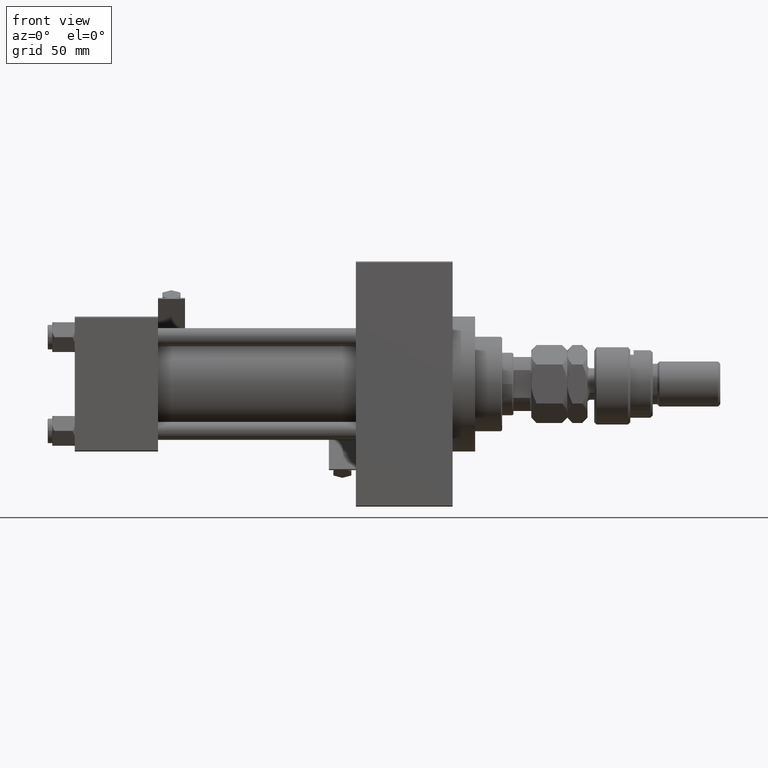
[diagram: clean part render]
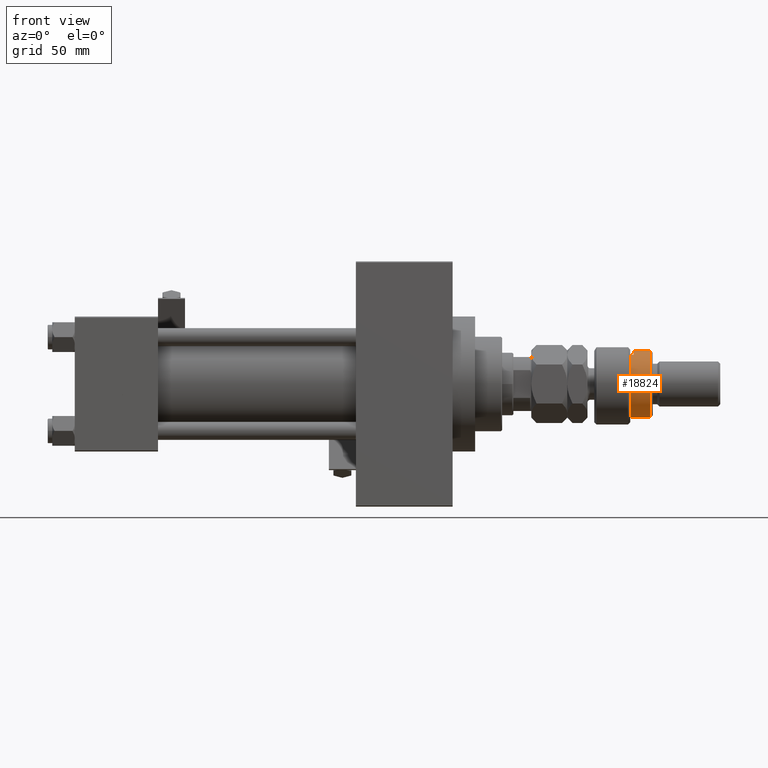
[diagram: same view with one face highlighted and labeled with its STEP entity id]
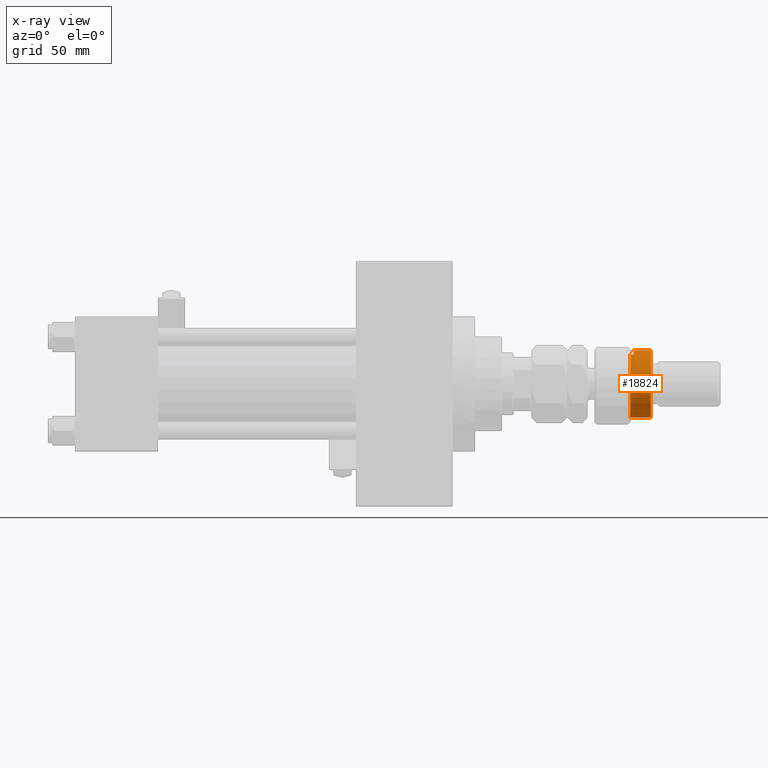
[diagram: x-ray of the same camera — body ghosted, the highlighted face saturated]
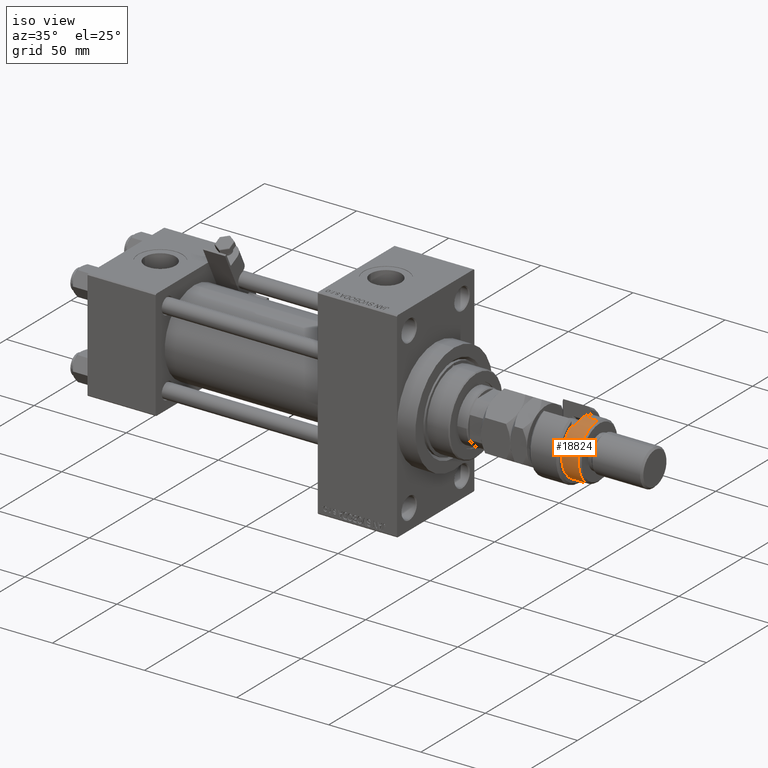
[diagram: same view with one face highlighted and labeled with its STEP entity id]
A machine part, front view. The second image highlights one B-rep face of the part: STEP entity #18824.
The next image is the same camera in x-ray: the body ghosted, the highlighted face saturated — about 0% of this face is hidden behind the body in this view.
A second angle (iso view) of the same face is appended — the face is thin or edge-on in the first view.
In plain terms, the highlighted cylindrical surface (edge-blend (fillet) strip) has radius 15 mm, axis along (-1, -0, 0).
Its self-contained STEP definition (entity closure, byte-faithful):
#448 = EDGE_CURVE ( 'NONE', #2203, #9886, #21284, .T. ) ;
#2203 = VERTEX_POINT ( 'NONE', #14972 ) ;
#4468 = CIRCLE ( 'NONE', #16581, 15.00000000000000000 ) ;
#4891 = FACE_OUTER_BOUND ( 'NONE', #12240, .T. ) ;
#5483 = LINE ( 'NONE', #30122, #36475 ) ;
#5739 = ORIENTED_EDGE ( 'NONE', *, *, #26897, .T. ) ;
#7665 = CARTESIAN_POINT ( 'NONE',  ( 0.000000000000000000, 0.000000000000000000, 24.99999999999997868 ) ) ;
#9214 = CYLINDRICAL_SURFACE ( 'NONE', #40117, 15.00000000000000000 ) ;
#9538 = CARTESIAN_POINT ( 'NONE',  ( 0.000000000000000000, 0.000000000000000000, 17.50000000000000000 ) ) ;
#9886 = VERTEX_POINT ( 'NONE', #48741 ) ;
#11655 = VERTEX_POINT ( 'NONE', #34429 ) ;
#11727 = DIRECTION ( 'NONE',  ( 0.000000000000000000, 0.000000000000000000, -1.000000000000000000 ) ) ;
#12240 = EDGE_LOOP ( 'NONE', ( #44793, #46743, #29122, #37477, #5739, #48478 ) ) ;
#12761 = DIRECTION ( 'NONE',  ( -0.000000000000000000, -0.000000000000000000, -1.000000000000000000 ) ) ;
#12969 = EDGE_CURVE ( 'NONE', #52557, #11655, #29182, .T. ) ;
#14459 = AXIS2_PLACEMENT_3D ( 'NONE', #7665, #11727, #40679 ) ;
#14972 = CARTESIAN_POINT ( 'NONE',  ( -12.99038105676658006, -7.500000000000000000, 16.00000000000000000 ) ) ;
#16581 = AXIS2_PLACEMENT_3D ( 'NONE', #9538, #30634, #50901 ) ;
#18820 = CARTESIAN_POINT ( 'NONE',  ( -12.99038105676658006, -7.500000000000000000, 26.00000000000000355 ) ) ;
#18824 = ADVANCED_FACE ( 'NONE', ( #4891 ), #9214, .T. ) ;
#21284 = CIRCLE ( 'NONE', #38559, 15.00000000000000000 ) ;
#22414 = VERTEX_POINT ( 'NONE', #28302 ) ;
#24909 = VECTOR ( 'NONE', #51520, 1000.000000000000000 ) ;
#25214 = DIRECTION ( 'NONE',  ( -1.000000000000000000, 0.000000000000000000, 0.000000000000000000 ) ) ;
#26897 = EDGE_CURVE ( 'NONE', #22414, #2203, #35589, .T. ) ;
#27434 = CIRCLE ( 'NONE', #14459, 15.00000000000000000 ) ;
#28302 = CARTESIAN_POINT ( 'NONE',  ( -12.99038105676658006, -7.500000000000000000, 17.50000000000000000 ) ) ;
#29122 = ORIENTED_EDGE ( 'NONE', *, *, #12969, .T. ) ;
#29182 = LINE ( 'NONE', #32689, #36356 ) ;
#30122 = CARTESIAN_POINT ( 'NONE',  ( 15.00000000000000000, 1.836970198721029589E-15, 26.00000000000000355 ) ) ;
#30634 = DIRECTION ( 'NONE',  ( 0.000000000000000000, 0.000000000000000000, -1.000000000000000000 ) ) ;
#32524 = CARTESIAN_POINT ( 'NONE',  ( 0.000000000000000000, 0.000000000000000000, 16.00000000000000000 ) ) ;
#32689 = CARTESIAN_POINT ( 'NONE',  ( -15.00000000000000000, 0.000000000000000000, 26.00000000000000355 ) ) ;
#33290 = VERTEX_POINT ( 'NONE', #42910 ) ;
#34429 = CARTESIAN_POINT ( 'NONE',  ( -15.00000000000000000, 0.000000000000000000, 17.50000000000000000 ) ) ;
#35589 = LINE ( 'NONE', #18820, #24909 ) ;
#36356 = VECTOR ( 'NONE', #45657, 1000.000000000000000 ) ;
#36475 = VECTOR ( 'NONE', #51441, 1000.000000000000000 ) ;
#36845 = DIRECTION ( 'NONE',  ( 0.000000000000000000, 0.000000000000000000, 1.000000000000000000 ) ) ;
#37026 = EDGE_CURVE ( 'NONE', #22414, #11655, #4468, .T. ) ;
#37477 = ORIENTED_EDGE ( 'NONE', *, *, #37026, .F. ) ;
#37639 = CARTESIAN_POINT ( 'NONE',  ( 0.000000000000000000, 0.000000000000000000, 26.00000000000000355 ) ) ;
#38249 = EDGE_CURVE ( 'NONE', #33290, #9886, #5483, .T. ) ;
#38559 = AXIS2_PLACEMENT_3D ( 'NONE', #32524, #36845, #40649 ) ;
#40117 = AXIS2_PLACEMENT_3D ( 'NONE', #37639, #12761, #25214 ) ;
#40649 = DIRECTION ( 'NONE',  ( 1.000000000000000000, 0.000000000000000000, 0.000000000000000000 ) ) ;
#40679 = DIRECTION ( 'NONE',  ( 1.000000000000000000, 0.000000000000000000, 0.000000000000000000 ) ) ;
#40716 = CARTESIAN_POINT ( 'NONE',  ( -15.00000000000000000, 0.000000000000000000, 24.99999999999997868 ) ) ;
#42910 = CARTESIAN_POINT ( 'NONE',  ( 15.00000000000000000, 1.836970198721029589E-15, 24.99999999999997868 ) ) ;
#44793 = ORIENTED_EDGE ( 'NONE', *, *, #38249, .F. ) ;
#45657 = DIRECTION ( 'NONE',  ( -0.000000000000000000, -0.000000000000000000, -1.000000000000000000 ) ) ;
#46743 = ORIENTED_EDGE ( 'NONE', *, *, #50585, .T. ) ;
#48478 = ORIENTED_EDGE ( 'NONE', *, *, #448, .T. ) ;
#48741 = CARTESIAN_POINT ( 'NONE',  ( 15.00000000000000000, 1.836970198721029589E-15, 16.00000000000000000 ) ) ;
#50585 = EDGE_CURVE ( 'NONE', #33290, #52557, #27434, .T. ) ;
#50901 = DIRECTION ( 'NONE',  ( -1.000000000000000000, 0.000000000000000000, 0.000000000000000000 ) ) ;
#51441 = DIRECTION ( 'NONE',  ( -0.000000000000000000, -0.000000000000000000, -1.000000000000000000 ) ) ;
#51520 = DIRECTION ( 'NONE',  ( -0.000000000000000000, -0.000000000000000000, -1.000000000000000000 ) ) ;
#52557 = VERTEX_POINT ( 'NONE', #40716 ) ;